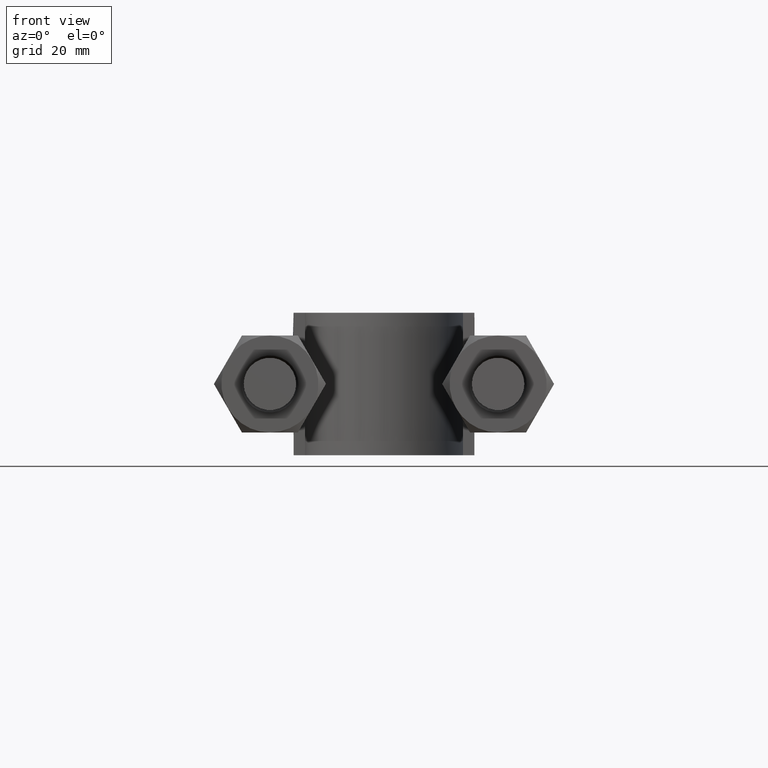
[diagram: clean part render]
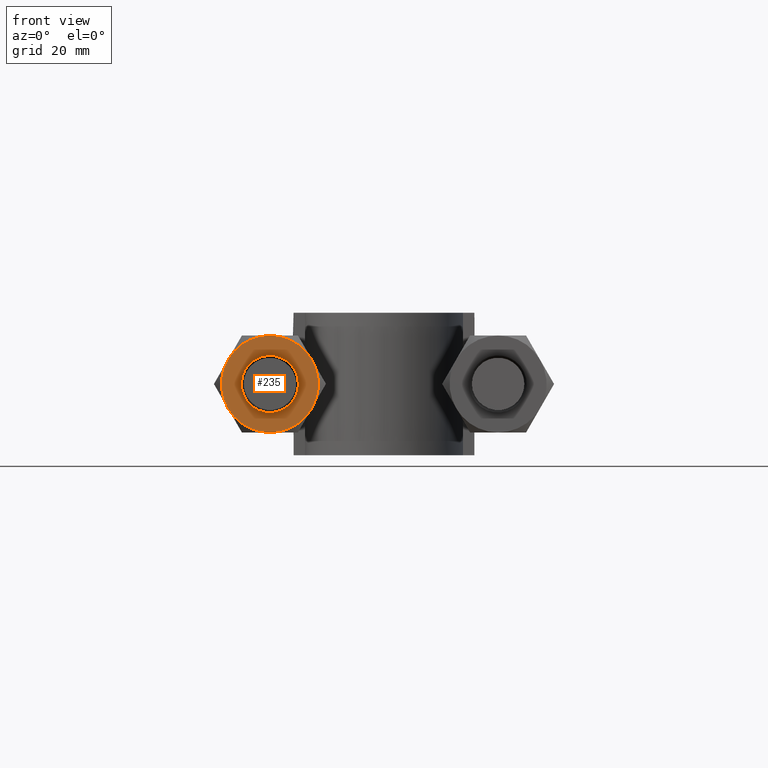
[diagram: same view with one face highlighted and labeled with its STEP entity id]
A machine part, front view. The second image highlights one B-rep face of the part: STEP entity #235.
In plain terms, the highlighted planar face has unit normal (0, 1, 0).
Its self-contained STEP definition (entity closure, byte-faithful):
#235 = ADVANCED_FACE( '', ( #320, #321 ), #322, .F. );
#320 = FACE_OUTER_BOUND( '', #1178, .T. );
#321 = FACE_BOUND( '', #1179, .T. );
#322 = PLANE( '', #1180 );
#1178 = EDGE_LOOP( '', ( #1396, #1397, #1398, #1399, #1400, #1401 ) );
#1179 = EDGE_LOOP( '', ( #1402 ) );
#1180 = AXIS2_PLACEMENT_3D( '', #1403, #1404, #1405 );
#1396 = ORIENTED_EDGE( '', *, *, #1759, .F. );
#1397 = ORIENTED_EDGE( '', *, *, #1760, .F. );
#1398 = ORIENTED_EDGE( '', *, *, #1761, .F. );
#1399 = ORIENTED_EDGE( '', *, *, #1762, .F. );
#1400 = ORIENTED_EDGE( '', *, *, #1757, .F. );
#1401 = ORIENTED_EDGE( '', *, *, #1763, .F. );
#1402 = ORIENTED_EDGE( '', *, *, #1764, .T. );
#1403 = CARTESIAN_POINT( '', ( -20.0000000000000, 20.0000000000000, -2.44921270764399E-016 ) );
#1404 = DIRECTION( '', ( 4.89842541528951E-016, 1.00000000000000, 6.12303176911189E-017 ) );
#1405 = DIRECTION( '', ( -0.866025403784371, 3.93600925972806E-016, 0.500000000000117 ) );
#1757 = EDGE_CURVE( '', #1898, #1900, #1901, .T. );
#1759 = EDGE_CURVE( '', #1903, #1904, #1905, .T. );
#1760 = EDGE_CURVE( '', #1906, #1903, #1907, .T. );
#1761 = EDGE_CURVE( '', #1908, #1906, #1909, .T. );
#1762 = EDGE_CURVE( '', #1900, #1908, #1910, .T. );
#1763 = EDGE_CURVE( '', #1904, #1898, #1911, .T. );
#1764 = EDGE_CURVE( '', #1912, #1912, #1913, .T. );
#1898 = VERTEX_POINT( '', #2276 );
#1900 = VERTEX_POINT( '', #2283 );
#1901 = CIRCLE( '', #2284, 8.50000000000000 );
#1903 = VERTEX_POINT( '', #2293 );
#1904 = VERTEX_POINT( '', #2294 );
#1905 = CIRCLE( '', #2295, 8.50000000000000 );
#1906 = VERTEX_POINT( '', #2296 );
#1907 = CIRCLE( '', #2297, 8.50000000000000 );
#1908 = VERTEX_POINT( '', #2298 );
#1909 = CIRCLE( '', #2299, 8.50000000000000 );
#1910 = CIRCLE( '', #2300, 8.50000000000000 );
#1911 = CIRCLE( '', #2301, 8.50000000000000 );
#1912 = VERTEX_POINT( '', #2302 );
#1913 = CIRCLE( '', #2303, 5.00000000000000 );
#2276 = CARTESIAN_POINT( '', ( -12.6387840678328, 20.0000000000000, -4.25000000000099 ) );
#2283 = CARTESIAN_POINT( '', ( -20.0000000000000, 20.0000000000000, -8.49999999999801 ) );
#2284 = AXIS2_PLACEMENT_3D( '', #2638, #2639, #2640 );
#2293 = CARTESIAN_POINT( '', ( -20.0000000000000, 20.0000000000000, 8.49999999999801 ) );
#2294 = CARTESIAN_POINT( '', ( -12.6387840678328, 20.0000000000000, 4.24999999999702 ) );
#2295 = AXIS2_PLACEMENT_3D( '', #2641, #2642, #2643 );
#2296 = CARTESIAN_POINT( '', ( -27.3612159321672, 20.0000000000000, 4.25000000000099 ) );
#2297 = AXIS2_PLACEMENT_3D( '', #2644, #2645, #2646 );
#2298 = CARTESIAN_POINT( '', ( -27.3612159321672, 20.0000000000000, -4.24999999999702 ) );
#2299 = AXIS2_PLACEMENT_3D( '', #2647, #2648, #2649 );
#2300 = AXIS2_PLACEMENT_3D( '', #2650, #2651, #2652 );
#2301 = AXIS2_PLACEMENT_3D( '', #2653, #2654, #2655 );
#2302 = CARTESIAN_POINT( '', ( -24.3301270189219, 20.0000000000000, 2.50000000000058 ) );
#2303 = AXIS2_PLACEMENT_3D( '', #2656, #2657, #2658 );
#2638 = CARTESIAN_POINT( '', ( -20.0000000000000, 20.0000000000000, -2.44921270764399E-016 ) );
#2639 = DIRECTION( '', ( 4.89842541528951E-016, 1.00000000000000, 6.12303176911188E-017 ) );
#2640 = DIRECTION( '', ( -0.866025403784371, 3.93600925972806E-016, 0.500000000000117 ) );
#2641 = CARTESIAN_POINT( '', ( -20.0000000000000, 20.0000000000000, -2.44921270764399E-016 ) );
#2642 = DIRECTION( '', ( 4.89842541528951E-016, 1.00000000000000, 6.12303176911188E-017 ) );
#2643 = DIRECTION( '', ( -0.866025403784371, 3.93600925972806E-016, 0.500000000000117 ) );
#2644 = CARTESIAN_POINT( '', ( -20.0000000000000, 20.0000000000000, -2.44921270764399E-016 ) );
#2645 = DIRECTION( '', ( 4.89842541528951E-016, 1.00000000000000, 6.12303176911188E-017 ) );
#2646 = DIRECTION( '', ( -0.866025403784371, 3.93600925972806E-016, 0.500000000000117 ) );
#2647 = CARTESIAN_POINT( '', ( -20.0000000000000, 20.0000000000000, -2.44921270764399E-016 ) );
#2648 = DIRECTION( '', ( 4.89842541528951E-016, 1.00000000000000, 6.12303176911188E-017 ) );
#2649 = DIRECTION( '', ( -0.866025403784371, 3.93600925972806E-016, 0.500000000000117 ) );
#2650 = CARTESIAN_POINT( '', ( -20.0000000000000, 20.0000000000000, -2.44921270764399E-016 ) );
#2651 = DIRECTION( '', ( 4.89842541528951E-016, 1.00000000000000, 6.12303176911188E-017 ) );
#2652 = DIRECTION( '', ( -0.866025403784371, 3.93600925972806E-016, 0.500000000000117 ) );
#2653 = CARTESIAN_POINT( '', ( -20.0000000000000, 20.0000000000000, -2.44921270764399E-016 ) );
#2654 = DIRECTION( '', ( 4.89842541528951E-016, 1.00000000000000, 6.12303176911188E-017 ) );
#2655 = DIRECTION( '', ( -0.866025403784371, 3.93600925972806E-016, 0.500000000000117 ) );
#2656 = CARTESIAN_POINT( '', ( -20.0000000000000, 20.0000000000000, -2.44921270764399E-016 ) );
#2657 = DIRECTION( '', ( 4.89842541528951E-016, 1.00000000000000, 6.12303176911188E-017 ) );
#2658 = DIRECTION( '', ( -0.866025403784371, 3.93600925972806E-016, 0.500000000000117 ) );